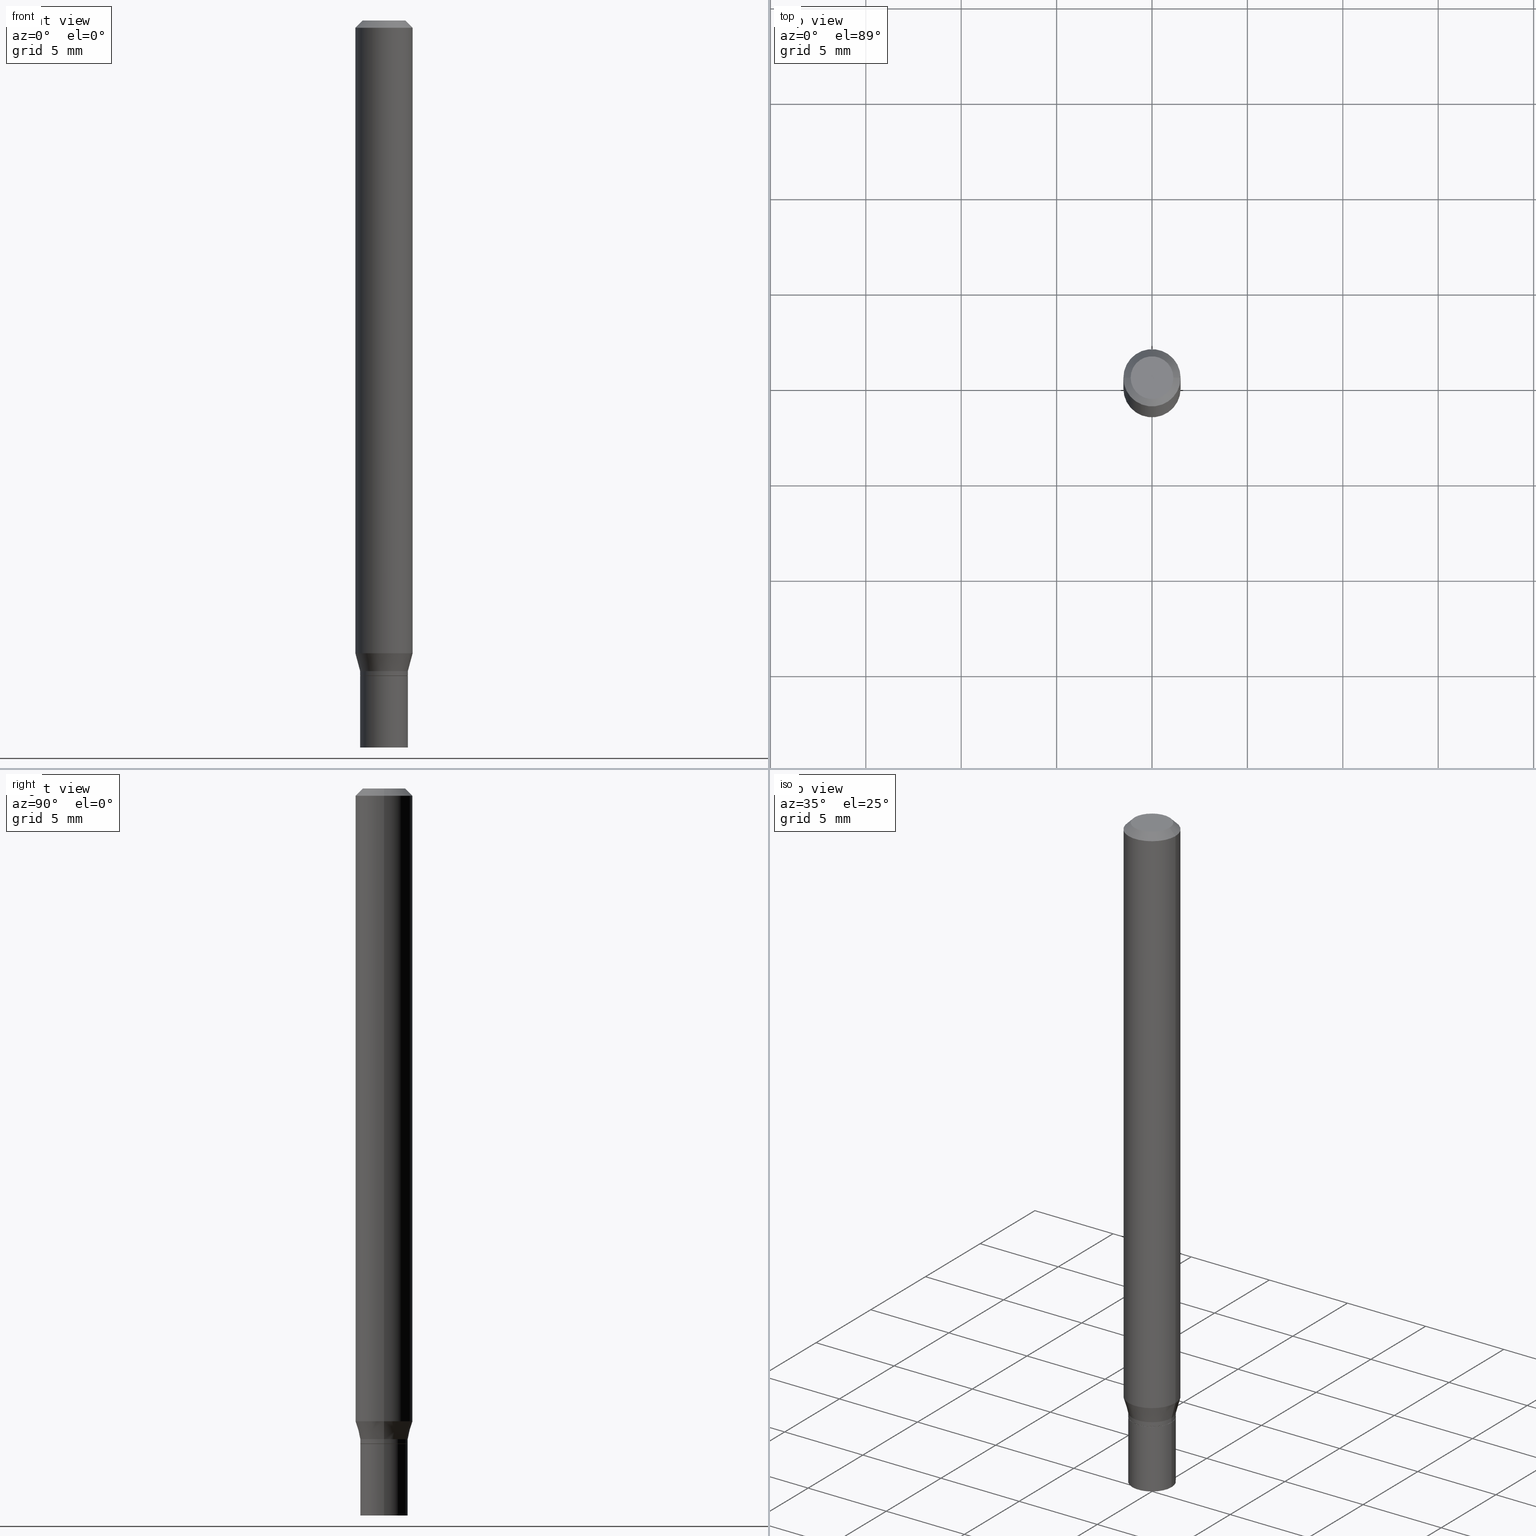
[diagram: canonical four-view strip — front | top / right | iso, engineering-drawing reading convention]
A machine part, canonical four-view strip (front | top / right | iso — engineering-drawing reading convention). The complete STEP part file that produces these views, byte-faithful:
ISO-10303-21;
HEADER;
FILE_DESCRIPTION (( 'STEP AP203' ),
    '1' );
FILE_NAME ('05088.STEP',
    '2024-03-14T17:48:42',
    ( '' ),
    ( '' ),
    'SwSTEP 2.0',
    'SolidWorks 2023',
    '' );
FILE_SCHEMA (( 'CONFIG_CONTROL_DESIGN' ));
ENDSEC;

DATA;
#1 = ORIENTED_EDGE ( 'NONE', *, *, #253, .T. ) ;
#2 = ORIENTED_EDGE ( 'NONE', *, *, #326, .T. ) ;
#3 = DIRECTION ( 'NONE',  ( 1.000000000000000000, -6.982962677686272233E-15, 0.000000000000000000 ) ) ;
#4 = ORIENTED_EDGE ( 'NONE', *, *, #368, .T. ) ;
#5 = AXIS2_PLACEMENT_3D ( 'NONE', #386, #105, #362 ) ;
#6 = CARTESIAN_POINT ( 'NONE',  ( 0.000000000000000000, 0.000000000000000000, 0.000000000000000000 ) ) ;
#7 = ORIENTED_EDGE ( 'NONE', *, *, #293, .T. ) ;
#8 = DIRECTION ( 'NONE',  ( -2.445468806185136597E-29, 3.491481338843145583E-15, 1.000000000000000000 ) ) ;
#9 = ORIENTED_EDGE ( 'NONE', *, *, #374, .F. ) ;
#10 = DIRECTION ( 'NONE',  ( 2.438088387897960049E-29, -3.491481338843145188E-15, -1.000000000000000000 ) ) ;
#11 = FACE_OUTER_BOUND ( 'NONE', #83, .T. ) ;
#12 = APPLICATION_CONTEXT ( 'configuration controlled 3d designs of mechanical parts and assemblies' ) ;
#13 = ORIENTED_EDGE ( 'NONE', *, *, #155, .T. ) ;
#14 = EDGE_CURVE ( 'NONE', #115, #342, #91, .T. ) ;
#15 = DIRECTION ( 'NONE',  ( 1.000000000000000000, -6.982962677686272233E-15, 0.000000000000000000 ) ) ;
#16 = DIRECTION ( 'NONE',  ( 1.000000000000000000, -6.982962677686266711E-15, 4.876176775795936353E-29 ) ) ;
#17 = VECTOR ( 'NONE', #233, 39.37007874015748143 ) ;
#18 = VECTOR ( 'NONE', #442, 39.37007874015748143 ) ;
#19 = CARTESIAN_POINT ( 'NONE',  ( -0.04870000000000000023, -4.375845050336302056E-15, -1.352400000000000047 ) ) ;
#20 = CARTESIAN_POINT ( 'NONE',  ( 3.282797325422927074E-29, -4.686964549263038164E-15, -1.342399999999999816 ) ) ;
#21 = CALENDAR_DATE ( 2024, 14, 3 ) ;
#22 = VERTEX_POINT ( 'NONE', #279 ) ;
#23 = DIRECTION ( 'NONE',  ( 1.000000000000000000, -6.982962677686265922E-15, 4.876176775795935793E-29 ) ) ;
#24 = COORDINATED_UNIVERSAL_TIME_OFFSET ( 5, 0, .BEHIND. ) ;
#25 = AXIS2_PLACEMENT_3D ( 'NONE', #156, #380, #46 ) ;
#26 = PERSON_AND_ORGANIZATION ( #171, #154 ) ;
#27 = APPROVAL ( #203, 'UNSPECIFIED' ) ;
#28 = DIRECTION ( 'NONE',  ( 2.445468806185136597E-29, -3.491481338843145583E-15, -1.000000000000000000 ) ) ;
#29 = CC_DESIGN_PERSON_AND_ORGANIZATION_ASSIGNMENT ( #319, #166, ( #325 ) ) ;
#30 = PERSON_AND_ORGANIZATION ( #171, #154 ) ;
#31 = CARTESIAN_POINT ( 'NONE',  ( 3.307252013484778620E-29, -4.721879362651470602E-15, -1.352400000000000047 ) ) ;
#32 = ADVANCED_FACE ( 'NONE', ( #11 ), #52, .F. ) ;
#33 = LOCAL_TIME ( 13, 48, 42.00000000000000000, #358 ) ;
#34 = SHAPE_DEFINITION_REPRESENTATION ( #373, #305 ) ;
#35 = EDGE_CURVE ( 'NONE', #443, #134, #213, .T. ) ;
#36 = CIRCLE ( 'NONE', #438, 0.04920000000000000068 ) ;
#37 = AXIS2_PLACEMENT_3D ( 'NONE', #194, #51, #350 ) ;
#38 = EDGE_LOOP ( 'NONE', ( #344, #229 ) ) ;
#39 = ORIENTED_EDGE ( 'NONE', *, *, #368, .F. ) ;
#40 = CARTESIAN_POINT ( 'NONE',  ( 3.282797325422927074E-29, -4.686964549263038164E-15, -1.342399999999999816 ) ) ;
#41 = DIRECTION ( 'NONE',  ( -2.445468806185136877E-29, 3.491481338843145188E-15, 1.000000000000000000 ) ) ;
#42 = AXIS2_PLACEMENT_3D ( 'NONE', #308, #449, #353 ) ;
#43 = ORIENTED_EDGE ( 'NONE', *, *, #388, .T. ) ;
#44 = CIRCLE ( 'NONE', #56, 0.04919999999999992435 ) ;
#45 = AXIS2_PLACEMENT_3D ( 'NONE', #448, #276, #444 ) ;
#46 = DIRECTION ( 'NONE',  ( 1.000000000000000000, -6.982962677686261977E-15, 0.000000000000000000 ) ) ;
#47 = ADVANCED_FACE ( 'NONE', ( #236 ), #445, .T. ) ;
#48 = EDGE_LOOP ( 'NONE', ( #153, #96, #2, #269 ) ) ;
#49 = DIRECTION ( 'NONE',  ( -2.445468806185136597E-29, 3.491481338843145583E-15, 1.000000000000000000 ) ) ;
#50 = CARTESIAN_POINT ( 'NONE',  ( 0.05904999999999999832, -4.970959195740536831E-15, -1.305639299545446663 ) ) ;
#51 = DIRECTION ( 'NONE',  ( -2.445468806185136597E-29, 3.491481338843145583E-15, 1.000000000000000000 ) ) ;
#52 = PLANE ( 'NONE',  #209 ) ;
#53 = EDGE_LOOP ( 'NONE', ( #110, #366, #7, #333 ) ) ;
#54 = DIRECTION ( 'NONE',  ( 1.000000000000000000, -6.982962677686272233E-15, 0.000000000000000000 ) ) ;
#55 = CIRCLE ( 'NONE', #330, 0.04919999999999992435 ) ;
#56 = AXIS2_PLACEMENT_3D ( 'NONE', #299, #336, #3 ) ;
#57 = COORDINATED_UNIVERSAL_TIME_OFFSET ( 5, 0, .BEHIND. ) ;
#58 = CC_DESIGN_PERSON_AND_ORGANIZATION_ASSIGNMENT ( #30, #61, ( #325 ) ) ;
#59 = DIRECTION ( 'NONE',  ( 1.000000000000000000, -6.982962677686266711E-15, 4.876176775795935793E-29 ) ) ;
#60 = LINE ( 'NONE', #207, #465 ) ;
#61 = PERSON_AND_ORGANIZATION_ROLE ( 'creator' ) ;
#62 = PERSON_AND_ORGANIZATION ( #171, #154 ) ;
#63 = AXIS2_PLACEMENT_3D ( 'NONE', #328, #216, #312 ) ;
#64 = CIRCLE ( 'NONE', #435, 0.04919999999999992435 ) ;
#65 = CALENDAR_DATE ( 2024, 14, 3 ) ;
#66 = CARTESIAN_POINT ( 'NONE',  ( 3.307252013484778620E-29, -4.721879362651470602E-15, -1.352400000000000047 ) ) ;
#67 = EDGE_CURVE ( 'NONE', #109, #342, #378, .T. ) ;
#68 = DATE_AND_TIME ( #172, #415 ) ;
#69 = DIRECTION ( 'NONE',  ( -2.445468806185136597E-29, 3.491481338843145583E-15, 1.000000000000000000 ) ) ;
#70 = EDGE_CURVE ( 'NONE', #372, #219, #367, .T. ) ;
#71 = CONICAL_SURFACE ( 'NONE', #397, 0.04919999999999992435, 0.2617993877991522944 ) ;
#72 = APPROVAL_DATE_TIME ( #68, #429 ) ;
#73 = DIRECTION ( 'NONE',  ( -2.445468806185136597E-29, 3.491481338843145583E-15, 1.000000000000000000 ) ) ;
#74 = ORIENTED_EDGE ( 'NONE', *, *, #318, .T. ) ;
#75 = VERTEX_POINT ( 'NONE', #204 ) ;
#76 = CONICAL_SURFACE ( 'NONE', #356, 0.04870000000000000023, 0.7853981633974739252 ) ;
#77 = VERTEX_POINT ( 'NONE', #128 ) ;
#78 = CARTESIAN_POINT ( 'NONE',  ( 0.05904999999999999832, -4.123439461173740327E-16, 2.879382386107500220E-30 ) ) ;
#79 =( GEOMETRIC_REPRESENTATION_CONTEXT ( 3 ) GLOBAL_UNCERTAINTY_ASSIGNED_CONTEXT ( ( #314 ) ) GLOBAL_UNIT_ASSIGNED_CONTEXT ( ( #424, #167, #281 ) ) REPRESENTATION_CONTEXT ( 'NONE', 'WORKASPACE' ) );
#80 = CYLINDRICAL_SURFACE ( 'NONE', #178, 0.05904999999999999832 ) ;
#81 = CARTESIAN_POINT ( 'NONE',  ( -0.05904999999999999832, 4.195754854663391478E-16, -2.904631170795521892E-30 ) ) ;
#82 = CARTESIAN_POINT ( 'NONE',  ( 3.075995059520799729E-16, 0.04404999999999999888, 2.287766971589489619E-17 ) ) ;
#83 = EDGE_LOOP ( 'NONE', ( #437, #185 ) ) ;
#84 = AXIS2_PLACEMENT_3D ( 'NONE', #419, #130, #433 ) ;
#85 = EDGE_LOOP ( 'NONE', ( #125, #149, #413, #274 ) ) ;
#86 = APPROVAL_PERSON_ORGANIZATION ( #26, #27, #208 ) ;
#87 = CARTESIAN_POINT ( 'NONE',  ( -0.04920000000000000068, -4.629963659464125339E-15, -1.500000000000000222 ) ) ;
#88 = CC_DESIGN_DATE_AND_TIME_ASSIGNMENT ( #140, #399, ( #114 ) ) ;
#89 = CARTESIAN_POINT ( 'NONE',  ( 3.307252013484778620E-29, -4.721879362651470602E-15, -1.352400000000000047 ) ) ;
#90 = CARTESIAN_POINT ( 'NONE',  ( -0.05904999999999999832, -4.139039764156823207E-15, -1.305639299545446663 ) ) ;
#91 = LINE ( 'NONE', #460, #17 ) ;
#92 = CARTESIAN_POINT ( 'NONE',  ( 3.306029279081686379E-29, -4.720133621982049098E-15, -1.351900000000000102 ) ) ;
#93 = PRODUCT_DEFINITION ( 'UNKNOWN', '', #325, #205 ) ;
#94 = DIRECTION ( 'NONE',  ( 1.000000000000000000, -6.982962677686266711E-15, 4.876176775795935793E-29 ) ) ;
#95 = CARTESIAN_POINT ( 'NONE',  ( 0.04919999999999992435, -5.030526313005201899E-15, -1.342399999999999816 ) ) ;
#96 = ORIENTED_EDGE ( 'NONE', *, *, #118, .T. ) ;
#97 = APPROVAL_ROLE ( '' ) ;
#98 = PLANE ( 'NONE',  #463 ) ;
#99 = LENGTH_MEASURE_WITH_UNIT ( LENGTH_MEASURE( 0.02539999999999999897 ), #455 );
#100 = MECHANICAL_CONTEXT ( 'NONE', #345, 'mechanical' ) ;
#101 = AXIS2_PLACEMENT_3D ( 'NONE', #89, #390, #124 ) ;
#102 = CALENDAR_DATE ( 2024, 14, 3 ) ;
#103 = CARTESIAN_POINT ( 'NONE',  ( 3.282797325422927074E-29, -4.686964549263038164E-15, -1.342399999999999816 ) ) ;
#104 = APPROVAL_STATUS ( 'not_yet_approved' ) ;
#105 = DIRECTION ( 'NONE',  ( -2.445468806185136597E-29, 3.491481338843145583E-15, 1.000000000000000000 ) ) ;
#106 = EDGE_CURVE ( 'NONE', #75, #109, #320, .T. ) ;
#107 = AXIS2_PLACEMENT_3D ( 'NONE', #20, #401, #141 ) ;
#108 = VECTOR ( 'NONE', #41, 39.37007874015748143 ) ;
#109 = VERTEX_POINT ( 'NONE', #50 ) ;
#110 = ORIENTED_EDGE ( 'NONE', *, *, #318, .F. ) ;
#111 = EDGE_CURVE ( 'NONE', #342, #109, #112, .T. ) ;
#112 = CIRCLE ( 'NONE', #425, 0.05904999999999999832 ) ;
#113 = VERTEX_POINT ( 'NONE', #277 ) ;
#114 = SECURITY_CLASSIFICATION ( '', '', #133 ) ;
#115 = VERTEX_POINT ( 'NONE', #158 ) ;
#116 = FACE_OUTER_BOUND ( 'NONE', #53, .T. ) ;
#117 = ORIENTED_EDGE ( 'NONE', *, *, #335, .F. ) ;
#118 = EDGE_CURVE ( 'NONE', #113, #436, #215, .T. ) ;
#119 = FACE_OUTER_BOUND ( 'NONE', #85, .T. ) ;
#120 = ORIENTED_EDGE ( 'NONE', *, *, #111, .F. ) ;
#121 = LINE ( 'NONE', #382, #466 ) ;
#122 = ORIENTED_EDGE ( 'NONE', *, *, #321, .F. ) ;
#123 = CARTESIAN_POINT ( 'NONE',  ( 0.04870000000000000023, -5.061949645054792119E-15, -1.352400000000000047 ) ) ;
#124 = DIRECTION ( 'NONE',  ( 1.000000000000000000, -6.982962677686271444E-15, 0.000000000000000000 ) ) ;
#125 = ORIENTED_EDGE ( 'NONE', *, *, #131, .T. ) ;
#126 = DIRECTION ( 'NONE',  ( -2.445468806185136597E-29, 3.491481338843145583E-15, 1.000000000000000000 ) ) ;
#127 = PLANE ( 'NONE',  #136 ) ;
#128 = CARTESIAN_POINT ( 'NONE',  ( 0.04920000000000000068, -5.580783772006882701E-15, -1.500000000000000222 ) ) ;
#129 = CARTESIAN_POINT ( 'NONE',  ( 0.04920000000000000068, -5.065441126393634337E-15, -1.352400000000000047 ) ) ;
#130 = DIRECTION ( 'NONE',  ( -2.445468806185136597E-29, 3.491481338843145583E-15, 1.000000000000000000 ) ) ;
#131 = EDGE_CURVE ( 'NONE', #75, #115, #254, .T. ) ;
#132 = DIRECTION ( 'NONE',  ( 0.7071067811865392461, -7.319954787623227646E-15, -0.7071067811865557884 ) ) ;
#133 = SECURITY_CLASSIFICATION_LEVEL ( 'unclassified' ) ;
#134 = VERTEX_POINT ( 'NONE', #163 ) ;
#135 = FACE_OUTER_BOUND ( 'NONE', #223, .T. ) ;
#136 = AXIS2_PLACEMENT_3D ( 'NONE', #82, #10, #267 ) ;
#137 = DATE_AND_TIME ( #21, #33 ) ;
#138 = ORIENTED_EDGE ( 'NONE', *, *, #67, .T. ) ;
#139 = ADVANCED_FACE ( 'NONE', ( #284 ), #177, .T. ) ;
#140 = DATE_AND_TIME ( #102, #398 ) ;
#141 = DIRECTION ( 'NONE',  ( 1.000000000000000000, -6.982962677686272233E-15, 0.000000000000000000 ) ) ;
#142 = CARTESIAN_POINT ( 'NONE',  ( 3.307252013484778620E-29, -4.721879362651470602E-15, -1.352400000000000047 ) ) ;
#143 = CC_DESIGN_APPROVAL ( #183, ( #93 ) ) ;
#144 = MANIFOLD_SOLID_BREP ( 'Body-Move/Copy2[2]', #152 ) ;
#145 = CC_DESIGN_APPROVAL ( #27, ( #325 ) ) ;
#146 = ADVANCED_FACE ( 'NONE', ( #430 ), #71, .T. ) ;
#147 = EDGE_CURVE ( 'NONE', #346, #134, #454, .T. ) ;
#148 = EDGE_LOOP ( 'NONE', ( #181, #395, #4, #381 ) ) ;
#149 = ORIENTED_EDGE ( 'NONE', *, *, #14, .T. ) ;
#150 = EDGE_LOOP ( 'NONE', ( #300, #164, #387, #266 ) ) ;
#151 = LINE ( 'NONE', #307, #286 ) ;
#152 = CLOSED_SHELL ( 'NONE', ( #394, #199, #421, #165, #450, #146, #427, #271, #376, #402, #139, #188 ) ) ;
#153 = ORIENTED_EDGE ( 'NONE', *, *, #363, .F. ) ;
#154 = ORGANIZATION ( 'UNSPECIFIED', 'UNSPECIFIED', '' ) ;
#155 = EDGE_CURVE ( 'NONE', #436, #113, #446, .T. ) ;
#156 = CARTESIAN_POINT ( 'NONE',  ( 3.668203209277704895E-29, -5.237222008264718177E-15, -1.500000000000000222 ) ) ;
#157 = CARTESIAN_POINT ( 'NONE',  ( 0.04919999999999992435, -3.435617637421637846E-16, 2.399078973691596618E-30 ) ) ;
#158 = CARTESIAN_POINT ( 'NONE',  ( -0.04919999999999992435, -4.238208643712945963E-15, -1.342399999999999816 ) ) ;
#159 = FACE_OUTER_BOUND ( 'NONE', #224, .T. ) ;
#160 = DIRECTION ( 'NONE',  ( -2.445468806185136597E-29, 3.491481338843145583E-15, 1.000000000000000000 ) ) ;
#161 = CONICAL_SURFACE ( 'NONE', #174, 0.05904999999999999832, 0.7853981633974366217 ) ;
#162 = FACE_OUTER_BOUND ( 'NONE', #38, .T. ) ;
#163 = CARTESIAN_POINT ( 'NONE',  ( -0.04920000000000000068, -4.629963659464125339E-15, -1.352400000000000047 ) ) ;
#164 = ORIENTED_EDGE ( 'NONE', *, *, #35, .T. ) ;
#165 = ADVANCED_FACE ( 'NONE', ( #272 ), #195, .T. ) ;
#166 = PERSON_AND_ORGANIZATION_ROLE ( 'design_supplier' ) ;
#167 =( NAMED_UNIT ( * ) PLANE_ANGLE_UNIT ( ) SI_UNIT ( $, .RADIAN. ) );
#168 = VECTOR ( 'NONE', #132, 39.37007874015748143 ) ;
#169 = COORDINATED_UNIVERSAL_TIME_OFFSET ( 5, 0, .BEHIND. ) ;
#170 = CALENDAR_DATE ( 2024, 14, 3 ) ;
#171 = PERSON ( 'UNSPECIFIED', 'UNSPECIFIED', 'UNSPECIFIED', ('UNSPECIFIED'), ('UNSPECIFIED'), ('UNSPECIFIED') ) ;
#172 = CALENDAR_DATE ( 2024, 14, 3 ) ;
#173 = DIRECTION ( 'NONE',  ( -2.445468806185136877E-29, 3.491481338843145188E-15, 1.000000000000000000 ) ) ;
#174 = AXIS2_PLACEMENT_3D ( 'NONE', #322, #28, #434 ) ;
#175 = CC_DESIGN_APPROVAL ( #429, ( #114 ) ) ;
#176 = EDGE_CURVE ( 'NONE', #219, #372, #456, .T. ) ;
#177 = CONICAL_SURFACE ( 'NONE', #101, 0.04870000000000000023, 0.7853981633974739252 ) ;
#178 = AXIS2_PLACEMENT_3D ( 'NONE', #6, #265, #226 ) ;
#179 = ORIENTED_EDGE ( 'NONE', *, *, #343, .T. ) ;
#180 = DIRECTION ( 'NONE',  ( -2.445468806185136877E-29, 3.491481338843145188E-15, 1.000000000000000000 ) ) ;
#181 = ORIENTED_EDGE ( 'NONE', *, *, #217, .F. ) ;
#182 = DIRECTION ( 'NONE',  ( 1.000000000000000000, -6.982962677686265922E-15, 4.876176775795935793E-29 ) ) ;
#183 = APPROVAL ( #104, 'UNSPECIFIED' ) ;
#184 = ORIENTED_EDGE ( 'NONE', *, *, #293, .F. ) ;
#185 = ORIENTED_EDGE ( 'NONE', *, *, #275, .T. ) ;
#186 = DIRECTION ( 'NONE',  ( -2.445468806185136597E-29, 3.491481338843145583E-15, 1.000000000000000000 ) ) ;
#187 = VECTOR ( 'NONE', #252, 39.37007874015748143 ) ;
#188 = ADVANCED_FACE ( 'NONE', ( #327 ), #256, .T. ) ;
#189 = CARTESIAN_POINT ( 'NONE',  ( 3.668203209277705088E-31, -5.237222008264718399E-17, -0.01499999999999999944 ) ) ;
#190 = CIRCLE ( 'NONE', #37, 0.04920000000000000068 ) ;
#191 = EDGE_LOOP ( 'NONE', ( #138, #74, #122, #184 ) ) ;
#192 = ORIENTED_EDGE ( 'NONE', *, *, #217, .T. ) ;
#193 = LINE ( 'NONE', #81, #108 ) ;
#194 = CARTESIAN_POINT ( 'NONE',  ( 3.668203209277704895E-29, -5.237222008264718177E-15, -1.500000000000000222 ) ) ;
#195 = CYLINDRICAL_SURFACE ( 'NONE', #261, 0.05904999999999999832 ) ;
#196 = CC_DESIGN_DATE_AND_TIME_ASSIGNMENT ( #283, #244, ( #93 ) ) ;
#197 = CARTESIAN_POINT ( 'NONE',  ( 0.04404999999999999888, -3.798447818264454163E-16, 3.533548453838733521E-16 ) ) ;
#198 = CARTESIAN_POINT ( 'NONE',  ( 3.435617637421973111E-16, 0.04919999999999528223, -1.352400000000000269 ) ) ;
#199 = ADVANCED_FACE ( 'NONE', ( #135 ), #76, .T. ) ;
#200 = AXIS2_PLACEMENT_3D ( 'NONE', #142, #69, #214 ) ;
#201 = ORIENTED_EDGE ( 'NONE', *, *, #14, .F. ) ;
#202 = FACE_OUTER_BOUND ( 'NONE', #148, .T. ) ;
#203 = APPROVAL_STATUS ( 'not_yet_approved' ) ;
#204 = CARTESIAN_POINT ( 'NONE',  ( 0.04919999999999992435, -5.030526313005201899E-15, -1.342399999999999816 ) ) ;
#205 = DESIGN_CONTEXT ( 'detailed design', #12, 'design' ) ;
#206 = APPROVAL_STATUS ( 'not_yet_approved' ) ;
#207 = CARTESIAN_POINT ( 'NONE',  ( 0.04920000000000000068, -3.435617637421643269E-16, 2.399078973691600472E-30 ) ) ;
#208 = APPROVAL_ROLE ( '' ) ;
#209 = AXIS2_PLACEMENT_3D ( 'NONE', #198, #417, #422 ) ;
#210 = CC_DESIGN_SECURITY_CLASSIFICATION ( #114, ( #325 ) ) ;
#211 = PERSON_AND_ORGANIZATION_ROLE ( 'design_owner' ) ;
#212 = PERSON_AND_ORGANIZATION ( #171, #154 ) ;
#213 = LINE ( 'NONE', #288, #407 ) ;
#214 = DIRECTION ( 'NONE',  ( 1.000000000000000000, -6.982962677686271444E-15, 0.000000000000000000 ) ) ;
#215 = CIRCLE ( 'NONE', #403, 0.04870000000000000023 ) ;
#216 = DIRECTION ( 'NONE',  ( -2.445468806185136597E-29, 3.491481338843145583E-15, 1.000000000000000000 ) ) ;
#217 = EDGE_CURVE ( 'NONE', #372, #291, #458, .T. ) ;
#218 = CC_DESIGN_PERSON_AND_ORGANIZATION_ASSIGNMENT ( #313, #392, ( #114 ) ) ;
#219 = VERTEX_POINT ( 'NONE', #423 ) ;
#220 = EDGE_LOOP ( 'NONE', ( #227, #179, #354, #237 ) ) ;
#221 = APPROVAL_PERSON_ORGANIZATION ( #212, #183, #97 ) ;
#222 = EDGE_LOOP ( 'NONE', ( #117, #43, #231, #426 ) ) ;
#223 = EDGE_LOOP ( 'NONE', ( #13, #405, #258, #260 ) ) ;
#224 = EDGE_LOOP ( 'NONE', ( #1, #409, #406, #9 ) ) ;
#225 = PRODUCT_RELATED_PRODUCT_CATEGORY ( 'detail', '', ( #440 ) ) ;
#226 = DIRECTION ( 'NONE',  ( 1.000000000000000000, -6.982962677686266711E-15, 4.876176775795936353E-29 ) ) ;
#227 = ORIENTED_EDGE ( 'NONE', *, *, #35, .F. ) ;
#228 = DIRECTION ( 'NONE',  ( 1.000000000000000000, -6.982962677686266711E-15, 0.000000000000000000 ) ) ;
#229 = ORIENTED_EDGE ( 'NONE', *, *, #70, .T. ) ;
#230 = FACE_OUTER_BOUND ( 'NONE', #297, .T. ) ;
#231 = ORIENTED_EDGE ( 'NONE', *, *, #374, .T. ) ;
#232 = CARTESIAN_POINT ( 'NONE',  ( -0.04919999999999992435, 3.495870259939687539E-16, -2.420116064405409913E-30 ) ) ;
#233 = DIRECTION ( 'NONE',  ( -0.2588190451025235150, 5.211531920934562875E-15, 0.9659258262890674240 ) ) ;
#234 = ORIENTED_EDGE ( 'NONE', *, *, #410, .T. ) ;
#235 = CARTESIAN_POINT ( 'NONE',  ( 0.04919999999999992435, -5.063695385724213622E-15, -1.351900000000000102 ) ) ;
#236 = FACE_OUTER_BOUND ( 'NONE', #150, .T. ) ;
#237 = ORIENTED_EDGE ( 'NONE', *, *, #275, .F. ) ;
#238 = LINE ( 'NONE', #157, #18 ) ;
#239 = DIRECTION ( 'NONE',  ( -2.445468806185136597E-29, 3.491481338843145583E-15, 1.000000000000000000 ) ) ;
#240 = VECTOR ( 'NONE', #180, 39.37007874015748143 ) ;
#241 = ADVANCED_FACE ( 'NONE', ( #247 ), #98, .F. ) ;
#242 = CC_DESIGN_PERSON_AND_ORGANIZATION_ASSIGNMENT ( #62, #211, ( #440 ) ) ;
#243 = EDGE_CURVE ( 'NONE', #77, #346, #60, .T. ) ;
#244 = DATE_TIME_ROLE ( 'creation_date' ) ;
#245 = DIRECTION ( 'NONE',  ( -2.445468806185136877E-29, 3.491481338843145188E-15, 1.000000000000000000 ) ) ;
#246 = DIRECTION ( 'NONE',  ( -2.438088387897960049E-29, 3.491481338843145188E-15, 1.000000000000000000 ) ) ;
#247 = FACE_OUTER_BOUND ( 'NONE', #441, .T. ) ;
#248 = CIRCLE ( 'NONE', #408, 0.05904999999999999832 ) ;
#249 = DIRECTION ( 'NONE',  ( 1.000000000000000000, -6.982962677686271444E-15, 0.000000000000000000 ) ) ;
#250 = CARTESIAN_POINT ( 'NONE',  ( 3.307252013484778620E-29, -4.721879362651470602E-15, -1.352400000000000047 ) ) ;
#251 = APPROVAL_DATE_TIME ( #137, #183 ) ;
#252 = DIRECTION ( 'NONE',  ( 0.2588190451025235150, 1.565188264969604613E-15, 0.9659258262890674240 ) ) ;
#253 = EDGE_CURVE ( 'NONE', #338, #22, #55, .T. ) ;
#254 = CIRCLE ( 'NONE', #107, 0.04919999999999992435 ) ;
#255 = VECTOR ( 'NONE', #420, 39.37007874015748143 ) ;
#256 = CYLINDRICAL_SURFACE ( 'NONE', #63, 0.04919999999999992435 ) ;
#257 = AXIS2_PLACEMENT_3D ( 'NONE', #295, #412, #439 ) ;
#258 = ORIENTED_EDGE ( 'NONE', *, *, #253, .F. ) ;
#259 = CARTESIAN_POINT ( 'NONE',  ( 3.668203209277705088E-31, -5.237222008264718399E-17, -0.01499999999999999944 ) ) ;
#260 = ORIENTED_EDGE ( 'NONE', *, *, #326, .F. ) ;
#261 = AXIS2_PLACEMENT_3D ( 'NONE', #348, #311, #16 ) ;
#262 = AXIS2_PLACEMENT_3D ( 'NONE', #453, #315, #396 ) ;
#263 = LINE ( 'NONE', #232, #255 ) ;
#264 = ORIENTED_EDGE ( 'NONE', *, *, #321, .T. ) ;
#265 = DIRECTION ( 'NONE',  ( -2.445468806185136597E-29, 3.491481338843145583E-15, 1.000000000000000000 ) ) ;
#266 = ORIENTED_EDGE ( 'NONE', *, *, #243, .F. ) ;
#267 = DIRECTION ( 'NONE',  ( -1.000000000000000000, 6.982962677686265922E-15, -4.876176775795935793E-29 ) ) ;
#268 = ORIENTED_EDGE ( 'NONE', *, *, #343, .F. ) ;
#269 = ORIENTED_EDGE ( 'NONE', *, *, #388, .F. ) ;
#270 = CYLINDRICAL_SURFACE ( 'NONE', #45, 0.04919999999999992435 ) ;
#271 = ADVANCED_FACE ( 'NONE', ( #202 ), #161, .T. ) ;
#272 = FACE_OUTER_BOUND ( 'NONE', #191, .T. ) ;
#273 = CARTESIAN_POINT ( 'NONE',  ( 0.05904999999999999832, -4.647161662000212105E-16, -0.01499999999999999944 ) ) ;
#274 = ORIENTED_EDGE ( 'NONE', *, *, #106, .F. ) ;
#275 = EDGE_CURVE ( 'NONE', #134, #346, #36, .T. ) ;
#276 = DIRECTION ( 'NONE',  ( -2.445468806185136597E-29, 3.491481338843145583E-15, 1.000000000000000000 ) ) ;
#277 = CARTESIAN_POINT ( 'NONE',  ( -0.04870000000000000023, -4.373195823162190855E-15, -1.352400000000000047 ) ) ;
#278 = DIRECTION ( 'NONE',  ( -2.445468806185136597E-29, 3.491481338843145583E-15, 1.000000000000000000 ) ) ;
#279 = CARTESIAN_POINT ( 'NONE',  ( -0.04919999999999992435, -4.370546595988081232E-15, -1.351900000000000102 ) ) ;
#280 = APPLICATION_PROTOCOL_DEFINITION ( 'international standard', 'config_control_design', 1994, #345 ) ;
#281 =( NAMED_UNIT ( * ) SI_UNIT ( $, .STERADIAN. ) SOLID_ANGLE_UNIT ( ) );
#282 = CC_DESIGN_PERSON_AND_ORGANIZATION_ASSIGNMENT ( #287, #428, ( #93 ) ) ;
#283 = DATE_AND_TIME ( #65, #369 ) ;
#284 = FACE_OUTER_BOUND ( 'NONE', #48, .T. ) ;
#285 = AXIS2_PLACEMENT_3D ( 'NONE', #384, #239, #59 ) ;
#286 = VECTOR ( 'NONE', #375, 39.37007874015748143 ) ;
#287 = PERSON_AND_ORGANIZATION ( #171, #154 ) ;
#288 = CARTESIAN_POINT ( 'NONE',  ( -0.04920000000000000068, 3.495870259939692963E-16, -2.420116064405413767E-30 ) ) ;
#289 = CONICAL_SURFACE ( 'NONE', #431, 0.04919999999999992435, 0.2617993877991522944 ) ;
#290 = ORIENTED_EDGE ( 'NONE', *, *, #118, .F. ) ;
#291 = VERTEX_POINT ( 'NONE', #273 ) ;
#292 = ORIENTED_EDGE ( 'NONE', *, *, #106, .T. ) ;
#293 = EDGE_CURVE ( 'NONE', #109, #291, #365, .T. ) ;
#294 = MANIFOLD_SOLID_BREP ( 'Body-Move/Copy2[1]', #324 ) ;
#295 = CARTESIAN_POINT ( 'NONE',  ( 3.668203209277705088E-31, -5.237222008264718399E-17, -0.01499999999999999944 ) ) ;
#296 = CONICAL_SURFACE ( 'NONE', #257, 0.05904999999999999832, 0.7853981633974366217 ) ;
#297 = EDGE_LOOP ( 'NONE', ( #370, #192, #264, #39 ) ) ;
#298 = DIRECTION ( 'NONE',  ( -2.445468806185136597E-29, 3.491481338843145583E-15, 1.000000000000000000 ) ) ;
#299 = CARTESIAN_POINT ( 'NONE',  ( 3.282797325422927074E-29, -4.686964549263038164E-15, -1.342399999999999816 ) ) ;
#300 = ORIENTED_EDGE ( 'NONE', *, *, #464, .T. ) ;
#301 = VERTEX_POINT ( 'NONE', #337 ) ;
#302 = CARTESIAN_POINT ( 'NONE',  ( 3.306029279081686379E-29, -4.720133621982049098E-15, -1.351900000000000102 ) ) ;
#303 = DIRECTION ( 'NONE',  ( -2.445468806185136597E-29, 3.491481338843145583E-15, 1.000000000000000000 ) ) ;
#304 = EDGE_CURVE ( 'NONE', #301, #291, #248, .T. ) ;
#305 = ADVANCED_BREP_SHAPE_REPRESENTATION ( '05088', ( #294, #144, #262 ), #79 ) ;
#306 = EDGE_LOOP ( 'NONE', ( #371, #290 ) ) ;
#307 = CARTESIAN_POINT ( 'NONE',  ( -0.05904999999999999832, 3.599717260347268549E-16, -0.01499999999999999944 ) ) ;
#308 = CARTESIAN_POINT ( 'NONE',  ( 3.192900179167801358E-29, -4.558615249623162700E-15, -1.305639299545446663 ) ) ;
#309 = CARTESIAN_POINT ( 'NONE',  ( 3.576687321579069994E-29, -5.368277968210015545E-15, -1.500000000000000222 ) ) ;
#310 = PLANE ( 'NONE',  #457 ) ;
#311 = DIRECTION ( 'NONE',  ( -2.445468806185136597E-29, 3.491481338843145583E-15, 1.000000000000000000 ) ) ;
#312 = DIRECTION ( 'NONE',  ( 1.000000000000000000, -6.982962677686266711E-15, 4.876176775795935793E-29 ) ) ;
#313 = PERSON_AND_ORGANIZATION ( #171, #154 ) ;
#314 = UNCERTAINTY_MEASURE_WITH_UNIT (LENGTH_MEASURE( 1.000000000000000082E-05 ), #424, 'distance_accuracy_value', 'NONE');
#315 = DIRECTION ( 'NONE',  ( 0.000000000000000000, 0.000000000000000000, 1.000000000000000000 ) ) ;
#316 = AXIS2_PLACEMENT_3D ( 'NONE', #385, #49, #94 ) ;
#317 = APPROVAL_DATE_TIME ( #352, #27 ) ;
#318 = EDGE_CURVE ( 'NONE', #342, #301, #193, .T. ) ;
#319 = PERSON_AND_ORGANIZATION ( #171, #154 ) ;
#320 = LINE ( 'NONE', #95, #187 ) ;
#321 = EDGE_CURVE ( 'NONE', #291, #301, #404, .T. ) ;
#322 = CARTESIAN_POINT ( 'NONE',  ( 3.668203209277705088E-31, -5.237222008264718399E-17, -0.01499999999999999944 ) ) ;
#323 = DIRECTION ( 'NONE',  ( -2.445468806185136597E-29, 3.491481338843145583E-15, 1.000000000000000000 ) ) ;
#324 = CLOSED_SHELL ( 'NONE', ( #47, #241, #359, #32 ) ) ;
#325 = PRODUCT_DEFINITION_FORMATION_WITH_SPECIFIED_SOURCE ( 'ANY', '', #440, .NOT_KNOWN. ) ;
#326 = EDGE_CURVE ( 'NONE', #436, #338, #121, .T. ) ;
#327 = FACE_OUTER_BOUND ( 'NONE', #222, .T. ) ;
#328 = CARTESIAN_POINT ( 'NONE',  ( 0.000000000000000000, 0.000000000000000000, 0.000000000000000000 ) ) ;
#329 = DIRECTION ( 'NONE',  ( 1.000000000000000000, -6.982962677686261977E-15, 0.000000000000000000 ) ) ;
#330 = AXIS2_PLACEMENT_3D ( 'NONE', #92, #393, #54 ) ;
#331 = VECTOR ( 'NONE', #347, 39.37007874015748143 ) ;
#332 = EDGE_LOOP ( 'NONE', ( #201, #234, #292, #120 ) ) ;
#333 = ORIENTED_EDGE ( 'NONE', *, *, #304, .F. ) ;
#334 = DIRECTION ( 'NONE',  ( 1.000000000000000000, -6.982962677686266711E-15, 0.000000000000000000 ) ) ;
#335 = EDGE_CURVE ( 'NONE', #22, #115, #263, .T. ) ;
#336 = DIRECTION ( 'NONE',  ( -2.445468806185136597E-29, 3.491481338843145583E-15, 1.000000000000000000 ) ) ;
#337 = CARTESIAN_POINT ( 'NONE',  ( -0.05904999999999999832, -1.885918249386565594E-15, -0.01499999999999999944 ) ) ;
#338 = VERTEX_POINT ( 'NONE', #235 ) ;
#339 = AXIS2_PLACEMENT_3D ( 'NONE', #31, #160, #462 ) ;
#340 = DIRECTION ( 'NONE',  ( 1.000000000000000000, -6.982962677686272233E-15, 0.000000000000000000 ) ) ;
#341 = AXIS2_PLACEMENT_3D ( 'NONE', #189, #8, #334 ) ;
#342 = VERTEX_POINT ( 'NONE', #90 ) ;
#343 = EDGE_CURVE ( 'NONE', #443, #77, #190, .T. ) ;
#344 = ORIENTED_EDGE ( 'NONE', *, *, #176, .T. ) ;
#345 = APPLICATION_CONTEXT ( 'configuration controlled 3d designs of mechanical parts and assemblies' ) ;
#346 = VERTEX_POINT ( 'NONE', #129 ) ;
#347 = DIRECTION ( 'NONE',  ( -0.7071067811865656694, 7.493145998870420424E-15, 0.7071067811865294761 ) ) ;
#348 = CARTESIAN_POINT ( 'NONE',  ( 0.000000000000000000, 0.000000000000000000, 0.000000000000000000 ) ) ;
#349 = DIRECTION ( 'NONE',  ( 1.000000000000000000, -6.982962677686271444E-15, 0.000000000000000000 ) ) ;
#350 = DIRECTION ( 'NONE',  ( 1.000000000000000000, -6.982962677686261977E-15, 0.000000000000000000 ) ) ;
#351 = DIRECTION ( 'NONE',  ( 1.000000000000000000, -6.982962677686273021E-15, 0.000000000000000000 ) ) ;
#352 = DATE_AND_TIME ( #170, #357 ) ;
#353 = DIRECTION ( 'NONE',  ( 1.000000000000000000, -6.982962677686273021E-15, 0.000000000000000000 ) ) ;
#354 = ORIENTED_EDGE ( 'NONE', *, *, #243, .T. ) ;
#355 = APPROVAL_ROLE ( '' ) ;
#356 = AXIS2_PLACEMENT_3D ( 'NONE', #414, #126, #349 ) ;
#357 = LOCAL_TIME ( 13, 48, 42.00000000000000000, #24 ) ;
#358 = COORDINATED_UNIVERSAL_TIME_OFFSET ( 5, 0, .BEHIND. ) ;
#359 = ADVANCED_FACE ( 'NONE', ( #416 ), #383, .T. ) ;
#360 = PERSON_AND_ORGANIZATION ( #171, #154 ) ;
#361 = DIMENSIONAL_EXPONENTS ( 1.000000000000000000, 0.000000000000000000, 0.000000000000000000, 0.000000000000000000, 0.000000000000000000, 0.000000000000000000, 0.000000000000000000 ) ;
#362 = DIRECTION ( 'NONE',  ( 1.000000000000000000, -6.982962677686265922E-15, 4.819687581474398999E-29 ) ) ;
#363 = EDGE_CURVE ( 'NONE', #113, #22, #411, .T. ) ;
#364 = DIRECTION ( 'NONE',  ( 0.7071067811865656694, -2.468850131082446387E-15, 0.7071067811865294761 ) ) ;
#365 = LINE ( 'NONE', #78, #240 ) ;
#366 = ORIENTED_EDGE ( 'NONE', *, *, #111, .T. ) ;
#367 = CIRCLE ( 'NONE', #5, 0.04404999999999999888 ) ;
#368 = EDGE_CURVE ( 'NONE', #219, #301, #151, .T. ) ;
#369 = LOCAL_TIME ( 13, 48, 42.00000000000000000, #57 ) ;
#370 = ORIENTED_EDGE ( 'NONE', *, *, #70, .F. ) ;
#371 = ORIENTED_EDGE ( 'NONE', *, *, #155, .F. ) ;
#372 = VERTEX_POINT ( 'NONE', #197 ) ;
#373 = PRODUCT_DEFINITION_SHAPE ( 'NONE', 'NONE',  #93 ) ;
#374 = EDGE_CURVE ( 'NONE', #338, #75, #238, .T. ) ;
#375 = DIRECTION ( 'NONE',  ( -0.7071067811865392461, 2.468850131082170286E-15, -0.7071067811865557884 ) ) ;
#376 = ADVANCED_FACE ( 'NONE', ( #162 ), #127, .F. ) ;
#377 = ORIENTED_EDGE ( 'NONE', *, *, #464, .F. ) ;
#378 = CIRCLE ( 'NONE', #42, 0.05904999999999999832 ) ;
#379 = CIRCLE ( 'NONE', #25, 0.04920000000000000068 ) ;
#380 = DIRECTION ( 'NONE',  ( -2.445468806185136597E-29, 3.491481338843145583E-15, 1.000000000000000000 ) ) ;
#381 = ORIENTED_EDGE ( 'NONE', *, *, #304, .T. ) ;
#382 = CARTESIAN_POINT ( 'NONE',  ( 0.04870000000000000023, -5.061949645054792119E-15, -1.352400000000000047 ) ) ;
#383 = CYLINDRICAL_SURFACE ( 'NONE', #316, 0.04920000000000000068 ) ;
#384 = CARTESIAN_POINT ( 'NONE',  ( 0.000000000000000000, 0.000000000000000000, 0.000000000000000000 ) ) ;
#385 = CARTESIAN_POINT ( 'NONE',  ( 0.000000000000000000, 0.000000000000000000, 0.000000000000000000 ) ) ;
#386 = CARTESIAN_POINT ( 'NONE',  ( -8.641182519006283330E-45, 1.233731848647590289E-30, 3.533548453838708869E-16 ) ) ;
#387 = ORIENTED_EDGE ( 'NONE', *, *, #147, .F. ) ;
#388 = EDGE_CURVE ( 'NONE', #22, #338, #64, .T. ) ;
#389 = DIRECTION ( 'NONE',  ( -2.438088387897960049E-29, 3.491481338843145188E-15, 1.000000000000000000 ) ) ;
#390 = DIRECTION ( 'NONE',  ( -2.445468806185136597E-29, 3.491481338843145583E-15, 1.000000000000000000 ) ) ;
#391 = CARTESIAN_POINT ( 'NONE',  ( 0.05904999999999999832, -4.574846268510561447E-16, -0.01499999999999999944 ) ) ;
#392 = PERSON_AND_ORGANIZATION_ROLE ( 'classification_officer' ) ;
#393 = DIRECTION ( 'NONE',  ( -2.445468806185136597E-29, 3.491481338843145583E-15, 1.000000000000000000 ) ) ;
#394 = ADVANCED_FACE ( 'NONE', ( #159 ), #270, .T. ) ;
#395 = ORIENTED_EDGE ( 'NONE', *, *, #176, .F. ) ;
#396 = DIRECTION ( 'NONE',  ( 1.000000000000000000, 0.000000000000000000, 0.000000000000000000 ) ) ;
#397 = AXIS2_PLACEMENT_3D ( 'NONE', #103, #323, #400 ) ;
#398 = LOCAL_TIME ( 13, 48, 42.00000000000000000, #459 ) ;
#399 = DATE_TIME_ROLE ( 'classification_date' ) ;
#400 = DIRECTION ( 'NONE',  ( 1.000000000000000000, -6.982962677686272233E-15, 0.000000000000000000 ) ) ;
#401 = DIRECTION ( 'NONE',  ( -2.445468806185136597E-29, 3.491481338843145583E-15, 1.000000000000000000 ) ) ;
#402 = ADVANCED_FACE ( 'NONE', ( #418 ), #310, .F. ) ;
#403 = AXIS2_PLACEMENT_3D ( 'NONE', #66, #452, #249 ) ;
#404 = CIRCLE ( 'NONE', #341, 0.05904999999999999832 ) ;
#405 = ORIENTED_EDGE ( 'NONE', *, *, #363, .T. ) ;
#406 = ORIENTED_EDGE ( 'NONE', *, *, #131, .F. ) ;
#407 = VECTOR ( 'NONE', #173, 39.37007874015748143 ) ;
#408 = AXIS2_PLACEMENT_3D ( 'NONE', #259, #298, #228 ) ;
#409 = ORIENTED_EDGE ( 'NONE', *, *, #335, .T. ) ;
#410 = EDGE_CURVE ( 'NONE', #115, #75, #44, .T. ) ;
#411 = LINE ( 'NONE', #19, #331 ) ;
#412 = DIRECTION ( 'NONE',  ( 2.445468806185136597E-29, -3.491481338843145583E-15, -1.000000000000000000 ) ) ;
#413 = ORIENTED_EDGE ( 'NONE', *, *, #67, .F. ) ;
#414 = CARTESIAN_POINT ( 'NONE',  ( 3.307252013484778620E-29, -4.721879362651470602E-15, -1.352400000000000047 ) ) ;
#415 = LOCAL_TIME ( 13, 48, 42.00000000000000000, #169 ) ;
#416 = FACE_OUTER_BOUND ( 'NONE', #220, .T. ) ;
#417 = DIRECTION ( 'NONE',  ( 2.438088387897960049E-29, -3.491481338843145188E-15, -1.000000000000000000 ) ) ;
#418 = FACE_OUTER_BOUND ( 'NONE', #306, .T. ) ;
#419 = CARTESIAN_POINT ( 'NONE',  ( -8.641182519006283330E-45, 1.233731848647590289E-30, 3.533548453838708869E-16 ) ) ;
#420 = DIRECTION ( 'NONE',  ( -2.445468806185136877E-29, 3.491481338843145188E-15, 1.000000000000000000 ) ) ;
#421 = ADVANCED_FACE ( 'NONE', ( #230 ), #296, .T. ) ;
#422 = DIRECTION ( 'NONE',  ( -1.000000000000000000, 6.982962677686265922E-15, -4.876176775795935793E-29 ) ) ;
#423 = CARTESIAN_POINT ( 'NONE',  ( -0.04404999999999999888, 3.337856159934040055E-16, 3.533548453838686682E-16 ) ) ;
#424 =( CONVERSION_BASED_UNIT ( 'INCH', #99 ) LENGTH_UNIT ( ) NAMED_UNIT ( #361 ) );
#425 = AXIS2_PLACEMENT_3D ( 'NONE', #432, #303, #351 ) ;
#426 = ORIENTED_EDGE ( 'NONE', *, *, #410, .F. ) ;
#427 = ADVANCED_FACE ( 'NONE', ( #116 ), #80, .T. ) ;
#428 = PERSON_AND_ORGANIZATION_ROLE ( 'creator' ) ;
#429 = APPROVAL ( #206, 'UNSPECIFIED' ) ;
#430 = FACE_OUTER_BOUND ( 'NONE', #332, .T. ) ;
#431 = AXIS2_PLACEMENT_3D ( 'NONE', #40, #186, #340 ) ;
#432 = CARTESIAN_POINT ( 'NONE',  ( 3.192900179167801358E-29, -4.558615249623162700E-15, -1.305639299545446663 ) ) ;
#433 = DIRECTION ( 'NONE',  ( 1.000000000000000000, -6.982962677686265922E-15, 4.819687581474398999E-29 ) ) ;
#434 = DIRECTION ( 'NONE',  ( -1.000000000000000000, 6.982962677686266711E-15, 0.000000000000000000 ) ) ;
#435 = AXIS2_PLACEMENT_3D ( 'NONE', #302, #278, #15 ) ;
#436 = VERTEX_POINT ( 'NONE', #123 ) ;
#437 = ORIENTED_EDGE ( 'NONE', *, *, #147, .T. ) ;
#438 = AXIS2_PLACEMENT_3D ( 'NONE', #250, #73, #329 ) ;
#439 = DIRECTION ( 'NONE',  ( -1.000000000000000000, 6.982962677686266711E-15, 0.000000000000000000 ) ) ;
#440 = PRODUCT ( '05088', '05088', '', ( #100 ) ) ;
#441 = EDGE_LOOP ( 'NONE', ( #377, #268 ) ) ;
#442 = DIRECTION ( 'NONE',  ( -2.445468806185136877E-29, 3.491481338843145188E-15, 1.000000000000000000 ) ) ;
#443 = VERTEX_POINT ( 'NONE', #87 ) ;
#444 = DIRECTION ( 'NONE',  ( 1.000000000000000000, -6.982962677686266711E-15, 4.876176775795935793E-29 ) ) ;
#445 = CYLINDRICAL_SURFACE ( 'NONE', #285, 0.04920000000000000068 ) ;
#446 = CIRCLE ( 'NONE', #200, 0.04870000000000000023 ) ;
#447 = APPROVAL_PERSON_ORGANIZATION ( #360, #429, #355 ) ;
#448 = CARTESIAN_POINT ( 'NONE',  ( 0.000000000000000000, 0.000000000000000000, 0.000000000000000000 ) ) ;
#449 = DIRECTION ( 'NONE',  ( -2.445468806185136597E-29, 3.491481338843145583E-15, 1.000000000000000000 ) ) ;
#450 = ADVANCED_FACE ( 'NONE', ( #119 ), #289, .T. ) ;
#451 = CARTESIAN_POINT ( 'NONE',  ( 3.307252013484778620E-29, -4.721879362651470602E-15, -1.352400000000000047 ) ) ;
#452 = DIRECTION ( 'NONE',  ( -2.445468806185136597E-29, 3.491481338843145583E-15, 1.000000000000000000 ) ) ;
#453 = CARTESIAN_POINT ( 'NONE',  ( 0.000000000000000000, 0.000000000000000000, 0.000000000000000000 ) ) ;
#454 = CIRCLE ( 'NONE', #339, 0.04920000000000000068 ) ;
#455 =( LENGTH_UNIT ( ) NAMED_UNIT ( * ) SI_UNIT ( $, .METRE. ) );
#456 = CIRCLE ( 'NONE', #84, 0.04404999999999999888 ) ;
#457 = AXIS2_PLACEMENT_3D ( 'NONE', #451, #389, #182 ) ;
#458 = LINE ( 'NONE', #391, #168 ) ;
#459 = COORDINATED_UNIVERSAL_TIME_OFFSET ( 5, 0, .BEHIND. ) ;
#460 = CARTESIAN_POINT ( 'NONE',  ( -0.04919999999999992435, -4.337377523269069508E-15, -1.342399999999999816 ) ) ;
#461 = APPLICATION_PROTOCOL_DEFINITION ( 'international standard', 'config_control_design', 1994, #12 ) ;
#462 = DIRECTION ( 'NONE',  ( 1.000000000000000000, -6.982962677686261977E-15, 0.000000000000000000 ) ) ;
#463 = AXIS2_PLACEMENT_3D ( 'NONE', #309, #246, #23 ) ;
#464 = EDGE_CURVE ( 'NONE', #77, #443, #379, .T. ) ;
#465 = VECTOR ( 'NONE', #245, 39.37007874015748143 ) ;
#466 = VECTOR ( 'NONE', #364, 39.37007874015748143 ) ;
ENDSEC;
END-ISO-10303-21;
